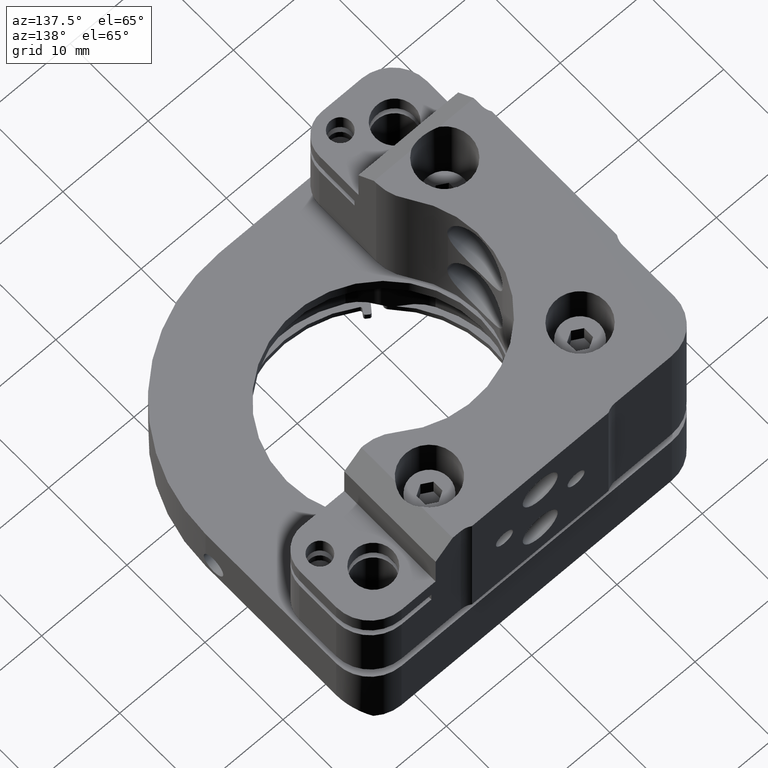
[diagram: clean part render]
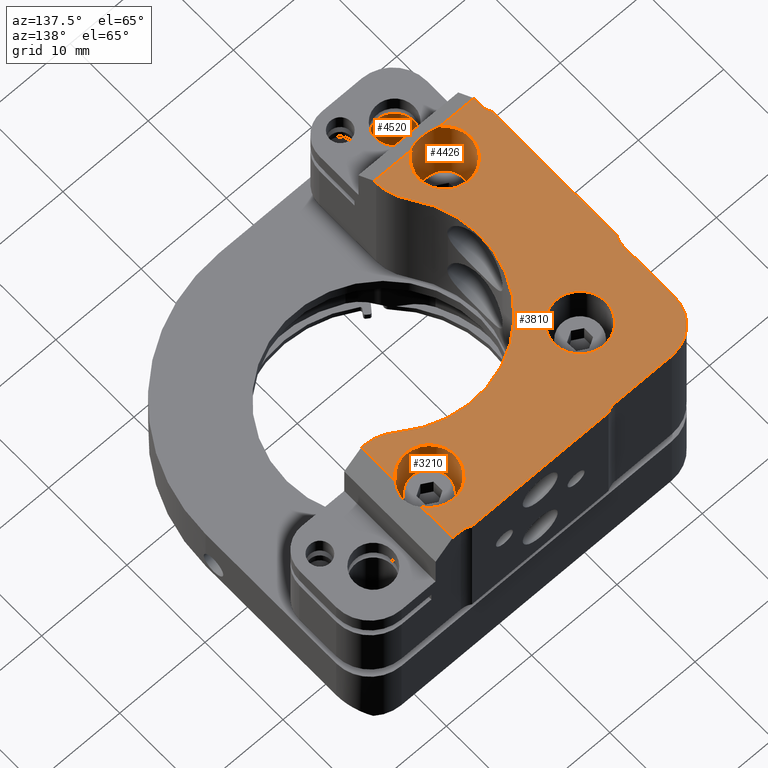
[diagram: same view with one multi-face feature highlighted, each face labeled with its STEP entity id]
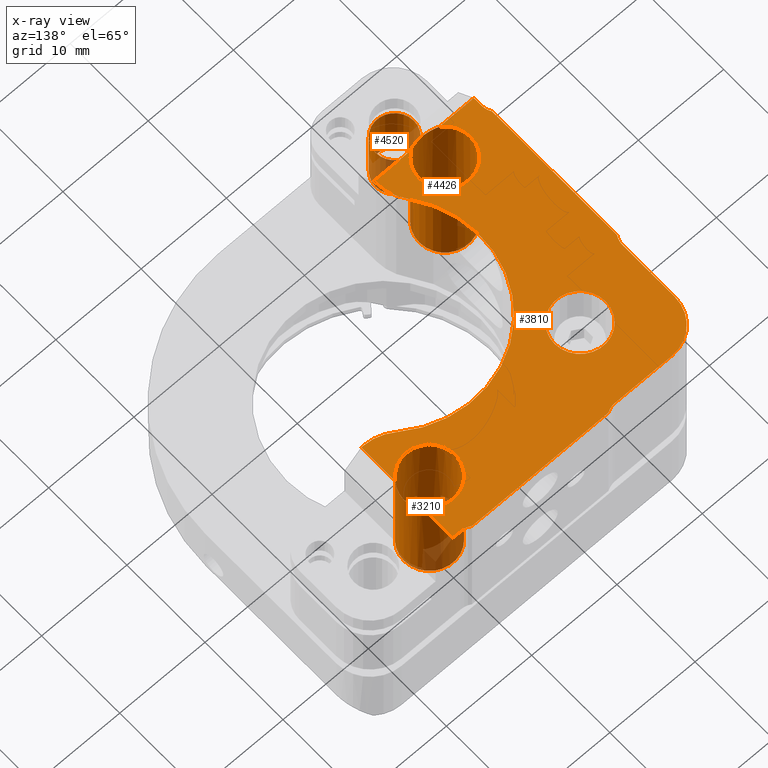
[diagram: x-ray of the same camera — body ghosted, the whole feature saturated]
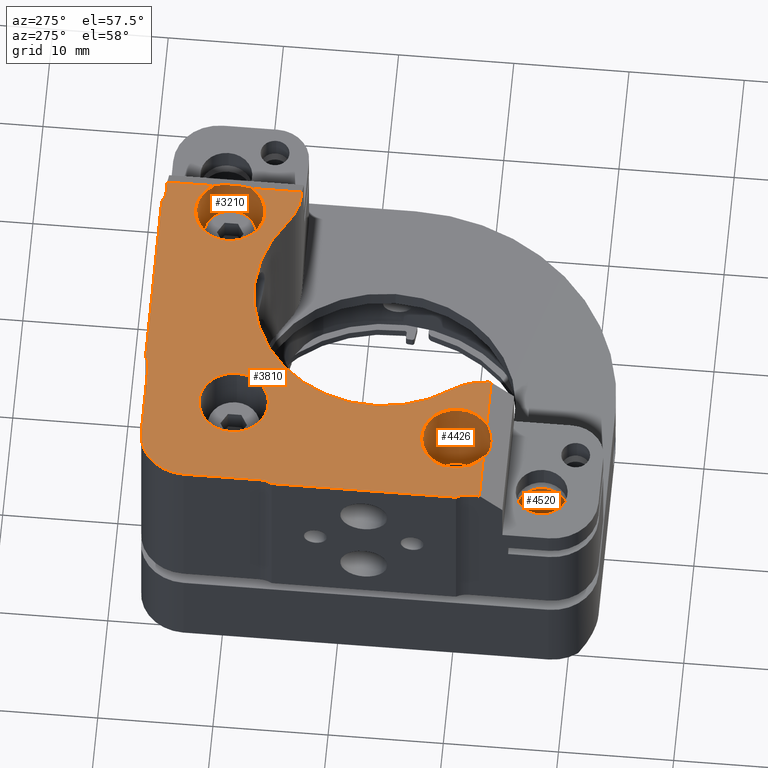
[diagram: same view with one multi-face feature highlighted, each face labeled with its STEP entity id]
A machine part, auxiliary view. The highlighted faces form ONE feature: a stepped (counterbored) hole: 3 coaxial cylindrical walls of radii 2.25 -> 3 -> 3 mm joined by 1 annular planar shoulder face(s). The faces share edges in the B-rep.
The next image is the same camera in x-ray: the body ghosted and the whole hole feature saturated, so the bore chain is visible through the body.
A second angle (auxiliary view) of the same feature is appended — it is thin or edge-on in the first view.
Their STEP definitions:
[1] entity #4426 (Cylinder):
#134 = DIRECTION ( 'NONE',  ( -0.000000000000000000, -0.000000000000000000, -1.000000000000000000 ) ) ;
#200 = AXIS2_PLACEMENT_3D ( 'NONE', #6591, #1652, #4134 ) ;
#840 = FACE_OUTER_BOUND ( 'NONE', #6400, .T. ) ;
#841 = EDGE_LOOP ( 'NONE', ( #7055 ) ) ;
#1652 = DIRECTION ( 'NONE',  ( 0.000000000000000000, 0.000000000000000000, 1.000000000000000000 ) ) ;
#2278 = CIRCLE ( 'NONE', #200, 2.999999999999999112 ) ;
#2597 = VERTEX_POINT ( 'NONE', #4562 ) ;
#2657 = DIRECTION ( 'NONE',  ( 1.000000000000000000, 0.000000000000000000, 0.000000000000000000 ) ) ;
#2949 = CARTESIAN_POINT ( 'NONE',  ( -17.93554518709433054, -13.20580469748687946, 52.06256395507176649 ) ) ;
#3170 = EDGE_CURVE ( 'NONE', #2597, #2597, #2278, .T. ) ;
#3223 =( BOUNDED_CURVE ( )  B_SPLINE_CURVE ( 3, ( #7374, #2949, #4267, #6804 ),
 .UNSPECIFIED., .F., .F. ) 
 B_SPLINE_CURVE_WITH_KNOTS ( ( 4, 4 ),
 ( 2.555907074614559793, 3.727278232565029548 ),
 .UNSPECIFIED. ) 
 CURVE ( )  GEOMETRIC_REPRESENTATION_ITEM ( )  RATIONAL_B_SPLINE_CURVE ( ( 1.000000000000000000, 0.8888888757999821033, 0.8888888757999821033, 1.000000000000000000 ) ) 
 REPRESENTATION_ITEM ( '' )  );
#3283 = DIRECTION ( 'NONE',  ( 1.000000000000000000, 0.000000000000000000, 0.000000000000000000 ) ) ;
#3724 = AXIS2_PLACEMENT_3D ( 'NONE', #5738, #134, #2657 ) ;
#4134 = DIRECTION ( 'NONE',  ( 1.000000000000000000, 0.000000000000000000, 0.000000000000000000 ) ) ;
#4231 = CARTESIAN_POINT ( 'NONE',  ( -15.65536551247457453, -12.51830461373832648, 52.75006403882015604 ) ) ;
#4267 = CARTESIAN_POINT ( 'NONE',  ( -16.69181080580063536, -13.20580469748687946, 52.06256395507176649 ) ) ;
#4426 = ADVANCED_FACE ( 'NONE', ( #840, #7519 ), #6284, .F. ) ;
#4562 = CARTESIAN_POINT ( 'NONE',  ( -14.31367799644748651, -10.01830467263840774, 39.75006403882015604 ) ) ;
#4663 = ORIENTED_EDGE ( 'NONE', *, *, #6455, .T. ) ;
#5181 = DIRECTION ( 'NONE',  ( 0.000000000000000000, 0.000000000000000000, 1.000000000000000000 ) ) ;
#5284 = VERTEX_POINT ( 'NONE', #6995 ) ;
#5738 = CARTESIAN_POINT ( 'NONE',  ( -17.31367799644748828, -10.01830467263840774, 52.75006403882015604 ) ) ;
#5850 = VERTEX_POINT ( 'NONE', #4231 ) ;
#6213 = AXIS2_PLACEMENT_3D ( 'NONE', #6905, #5181, #3283 ) ;
#6284 = CYLINDRICAL_SURFACE ( 'NONE', #6213, 2.999999999999999112 ) ;
#6400 = EDGE_LOOP ( 'NONE', ( #4663, #6865 ) ) ;
#6445 = CIRCLE ( 'NONE', #3724, 2.999999999999999112 ) ;
#6455 = EDGE_CURVE ( 'NONE', #5284, #5850, #3223, .T. ) ;
#6589 = EDGE_CURVE ( 'NONE', #5284, #5850, #6445, .T. ) ;
#6591 = CARTESIAN_POINT ( 'NONE',  ( -17.31367799644748828, -10.01830467263840774, 39.75006403882015604 ) ) ;
#6804 = CARTESIAN_POINT ( 'NONE',  ( -15.65536551247457453, -12.51830461373832648, 52.75006403882015604 ) ) ;
#6865 = ORIENTED_EDGE ( 'NONE', *, *, #6589, .F. ) ;
#6905 = CARTESIAN_POINT ( 'NONE',  ( -17.31367799644748828, -10.01830467263840774, 39.75006403882015604 ) ) ;
#6995 = CARTESIAN_POINT ( 'NONE',  ( -18.97199048042039138, -12.51830461373832648, 52.75006403882015604 ) ) ;
#7055 = ORIENTED_EDGE ( 'NONE', *, *, #3170, .F. ) ;
#7374 = CARTESIAN_POINT ( 'NONE',  ( -18.97199048042039138, -12.51830461373832648, 52.75006403882015604 ) ) ;
#7519 = FACE_OUTER_BOUND ( 'NONE', #841, .T. ) ;
[2] entity #3210 (Cylinder):
#417 = CARTESIAN_POINT ( 'NONE',  ( 4.186322003552734650, 11.48169532736162246, 39.75006403882015604 ) ) ;
#503 = CARTESIAN_POINT ( 'NONE',  ( 6.686321944653159655, 13.14000781133376883, 52.75006403882017025 ) ) ;
#879 = CARTESIAN_POINT ( 'NONE',  ( 7.186322003552734650, 11.48169532736162246, 39.75006403882015604 ) ) ;
#1116 = CARTESIAN_POINT ( 'NONE',  ( 6.686321944653215610, 9.823382843389557806, 52.75006403882011341 ) ) ;
#1155 = ORIENTED_EDGE ( 'NONE', *, *, #3578, .F. ) ;
#2541 = CARTESIAN_POINT ( 'NONE',  ( 6.686321944653215610, 9.823382843389557806, 52.75006403882011341 ) ) ;
#2770 = VERTEX_POINT ( 'NONE', #2541 ) ;
#2784 = VERTEX_POINT ( 'NONE', #879 ) ;
#2898 = FACE_OUTER_BOUND ( 'NONE', #7850, .T. ) ;
#2924 = AXIS2_PLACEMENT_3D ( 'NONE', #417, #7897, #5895 ) ;
#3210 = ADVANCED_FACE ( 'NONE', ( #2898, #7246 ), #7855, .F. ) ;
#3307 = AXIS2_PLACEMENT_3D ( 'NONE', #6344, #6416, #5158 ) ;
#3353 = EDGE_CURVE ( 'NONE', #2770, #6908, #6266, .T. ) ;
#3512 = EDGE_CURVE ( 'NONE', #2770, #6908, #4750, .T. ) ;
#3578 = EDGE_CURVE ( 'NONE', #2784, #2784, #7499, .T. ) ;
#3607 = CARTESIAN_POINT ( 'NONE',  ( 7.373822028400991435, 10.85982813671521008, 52.06256395507249124 ) ) ;
#3809 = DIRECTION ( 'NONE',  ( -0.000000000000000000, -0.000000000000000000, -1.000000000000000000 ) ) ;
#4551 = CARTESIAN_POINT ( 'NONE',  ( 4.186322003552734650, 11.48169532736162246, 52.75006403882015604 ) ) ;
#4750 = CIRCLE ( 'NONE', #5017, 3.000000000000000000 ) ;
#5017 = AXIS2_PLACEMENT_3D ( 'NONE', #4551, #3809, #5124 ) ;
#5124 = DIRECTION ( 'NONE',  ( 1.000000000000000000, 0.000000000000000000, 0.000000000000000000 ) ) ;
#5158 = DIRECTION ( 'NONE',  ( 1.000000000000000000, 0.000000000000000000, 0.000000000000000000 ) ) ;
#5895 = DIRECTION ( 'NONE',  ( 1.000000000000000000, 0.000000000000000000, 0.000000000000000000 ) ) ;
#6266 =( BOUNDED_CURVE ( )  B_SPLINE_CURVE ( 3, ( #1116, #3607, #6888, #503 ),
 .UNSPECIFIED., .F., .F. ) 
 B_SPLINE_CURVE_WITH_KNOTS ( ( 4, 4 ),
 ( 2.555907074614895969, 3.727278232564723570 ),
 .UNSPECIFIED. ) 
 CURVE ( )  GEOMETRIC_REPRESENTATION_ITEM ( )  RATIONAL_B_SPLINE_CURVE ( ( 1.000000000000000000, 0.8888888758001005641, 0.8888888758001005641, 1.000000000000000000 ) ) 
 REPRESENTATION_ITEM ( '' )  );
#6344 = CARTESIAN_POINT ( 'NONE',  ( 4.186322003552734650, 11.48169532736162246, 39.75006403882015604 ) ) ;
#6416 = DIRECTION ( 'NONE',  ( 0.000000000000000000, 0.000000000000000000, 1.000000000000000000 ) ) ;
#6888 = CARTESIAN_POINT ( 'NONE',  ( 7.373822028400970119, 12.10356251800813787, 52.06256395507249835 ) ) ;
#6908 = VERTEX_POINT ( 'NONE', #7342 ) ;
#6965 = ORIENTED_EDGE ( 'NONE', *, *, #3353, .T. ) ;
#6969 = ORIENTED_EDGE ( 'NONE', *, *, #3512, .F. ) ;
#7246 = FACE_OUTER_BOUND ( 'NONE', #8022, .T. ) ;
#7342 = CARTESIAN_POINT ( 'NONE',  ( 6.686321944653159655, 13.14000781133376883, 52.75006403882017025 ) ) ;
#7499 = CIRCLE ( 'NONE', #3307, 3.000000000000000000 ) ;
#7850 = EDGE_LOOP ( 'NONE', ( #6965, #6969 ) ) ;
#7855 = CYLINDRICAL_SURFACE ( 'NONE', #2924, 3.000000000000000000 ) ;
#7897 = DIRECTION ( 'NONE',  ( 0.000000000000000000, 0.000000000000000000, 1.000000000000000000 ) ) ;
#8022 = EDGE_LOOP ( 'NONE', ( #1155 ) ) ;
[3] entity #4520 (Cylinder):
#108 = CARTESIAN_POINT ( 'NONE',  ( -18.31367799644748828, -17.51830467263837576, 43.75006403882016315 ) ) ;
#819 = EDGE_LOOP ( 'NONE', ( #2329 ) ) ;
#1130 = CYLINDRICAL_SURFACE ( 'NONE', #4116, 2.250000000000001776 ) ;
#1702 = DIRECTION ( 'NONE',  ( 0.000000000000000000, 0.000000000000000000, 1.000000000000000000 ) ) ;
#1822 = EDGE_LOOP ( 'NONE', ( #4316 ) ) ;
#2329 = ORIENTED_EDGE ( 'NONE', *, *, #7338, .F. ) ;
#2531 = VERTEX_POINT ( 'NONE', #4954 ) ;
#2593 = DIRECTION ( 'NONE',  ( -0.000000000000000000, -0.000000000000000000, -1.000000000000000000 ) ) ;
#2886 = DIRECTION ( 'NONE',  ( 0.000000000000000000, 0.000000000000000000, 1.000000000000000000 ) ) ;
#2952 = AXIS2_PLACEMENT_3D ( 'NONE', #6786, #2886, #3680 ) ;
#3081 = AXIS2_PLACEMENT_3D ( 'NONE', #108, #2593, #5004 ) ;
#3641 = VERTEX_POINT ( 'NONE', #5330 ) ;
#3680 = DIRECTION ( 'NONE',  ( 1.000000000000000000, 0.000000000000000000, 0.000000000000000000 ) ) ;
#3998 = CIRCLE ( 'NONE', #2952, 2.250000000000001776 ) ;
#4116 = AXIS2_PLACEMENT_3D ( 'NONE', #6196, #1702, #4846 ) ;
#4316 = ORIENTED_EDGE ( 'NONE', *, *, #4642, .F. ) ;
#4520 = ADVANCED_FACE ( 'NONE', ( #4886, #6850 ), #1130, .F. ) ;
#4642 = EDGE_CURVE ( 'NONE', #3641, #3641, #6079, .T. ) ;
#4846 = DIRECTION ( 'NONE',  ( 1.000000000000000000, 0.000000000000000000, 0.000000000000000000 ) ) ;
#4886 = FACE_OUTER_BOUND ( 'NONE', #1822, .T. ) ;
#4954 = CARTESIAN_POINT ( 'NONE',  ( -16.06367799644748473, -17.51830467263837576, 36.75006403882015604 ) ) ;
#5004 = DIRECTION ( 'NONE',  ( 1.000000000000000000, 0.000000000000000000, 0.000000000000000000 ) ) ;
#5330 = CARTESIAN_POINT ( 'NONE',  ( -16.06367799644748473, -17.51830467263837576, 43.75006403882016315 ) ) ;
#6079 = CIRCLE ( 'NONE', #3081, 2.250000000000001776 ) ;
#6196 = CARTESIAN_POINT ( 'NONE',  ( -18.31367799644748828, -17.51830467263837576, 36.75006403882015604 ) ) ;
#6786 = CARTESIAN_POINT ( 'NONE',  ( -18.31367799644748828, -17.51830467263837576, 36.75006403882015604 ) ) ;
#6850 = FACE_OUTER_BOUND ( 'NONE', #819, .T. ) ;
#7338 = EDGE_CURVE ( 'NONE', #2531, #2531, #3998, .T. ) ;
[4] entity #3810 (Plane):
#8 = DIRECTION ( 'NONE',  ( 1.000000000000000000, 3.483324739761428141E-13, 0.000000000000000000 ) ) ;
#35 = CARTESIAN_POINT ( 'NONE',  ( -19.01367805534578892, 13.18169538626012560, 52.75006403882015604 ) ) ;
#48 = AXIS2_PLACEMENT_3D ( 'NONE', #3763, #3634, #6253 ) ;
#51 = EDGE_CURVE ( 'NONE', #4403, #5511, #506, .T. ) ;
#52 = LINE ( 'NONE', #3155, #189 ) ;
#134 = DIRECTION ( 'NONE',  ( -0.000000000000000000, -0.000000000000000000, -1.000000000000000000 ) ) ;
#186 = VERTEX_POINT ( 'NONE', #4544 ) ;
#189 = VECTOR ( 'NONE', #3194, 1000.000000000000000 ) ;
#203 = LINE ( 'NONE', #7686, #7697 ) ;
#240 = CARTESIAN_POINT ( 'NONE',  ( -23.01367805534600919, 6.535260761545188757, 52.75006403882015604 ) ) ;
#326 = AXIS2_PLACEMENT_3D ( 'NONE', #6916, #3802, #493 ) ;
#415 = EDGE_CURVE ( 'NONE', #5065, #3134, #3310, .T. ) ;
#493 = DIRECTION ( 'NONE',  ( 1.000000000000000000, -1.734723475976807094E-15, 0.000000000000000000 ) ) ;
#504 = DIRECTION ( 'NONE',  ( 1.000000000000000000, 0.000000000000000000, -0.000000000000000000 ) ) ;
#506 = CIRCLE ( 'NONE', #3859, 5.000000000000000888 ) ;
#510 = CARTESIAN_POINT ( 'NONE',  ( -23.31367805534660675, -10.51830461373879899, 52.75006403882015604 ) ) ;
#621 = VECTOR ( 'NONE', #7689, 1000.000000000000000 ) ;
#656 = ORIENTED_EDGE ( 'NONE', *, *, #2089, .T. ) ;
#686 = VERTEX_POINT ( 'NONE', #2583 ) ;
#701 = CARTESIAN_POINT ( 'NONE',  ( -19.01367805534630406, 17.18169538626010251, 52.75006403882015604 ) ) ;
#747 = DIRECTION ( 'NONE',  ( -0.000000000000000000, -0.000000000000000000, -1.000000000000000000 ) ) ;
#899 = LINE ( 'NONE', #1678, #4565 ) ;
#922 = DIRECTION ( 'NONE',  ( 1.000000000000000000, 0.000000000000000000, -0.000000000000000000 ) ) ;
#944 = DIRECTION ( 'NONE',  ( 1.387778780781449935E-14, 1.000000000000000000, -0.000000000000000000 ) ) ;
#1026 = EDGE_LOOP ( 'NONE', ( #5889 ) ) ;
#1037 = CARTESIAN_POINT ( 'NONE',  ( -23.01367805534638222, -11.57186998902402841, 52.75006403882015604 ) ) ;
#1102 = LINE ( 'NONE', #3590, #2305 ) ;
#1222 = CARTESIAN_POINT ( 'NONE',  ( -25.01367805534648170, 6.535260761545221619, 52.75006403882015604 ) ) ;
#1439 = ORIENTED_EDGE ( 'NONE', *, *, #7337, .F. ) ;
#1462 = CARTESIAN_POINT ( 'NONE',  ( -11.31367805534638649, -19.51830461373927861, 52.75006403882015604 ) ) ;
#1479 = AXIS2_PLACEMENT_3D ( 'NONE', #35, #6945, #5721 ) ;
#1482 = EDGE_CURVE ( 'NONE', #7163, #1677, #6102, .T. ) ;
#1483 = DIRECTION ( 'NONE',  ( -1.000000000000000000, -0.000000000000000000, -0.000000000000000000 ) ) ;
#1520 = VERTEX_POINT ( 'NONE', #4262 ) ;
#1562 = CARTESIAN_POINT ( 'NONE',  ( -23.01367805534648170, -12.51830461373832826, 52.75006403882016315 ) ) ;
#1622 = ORIENTED_EDGE ( 'NONE', *, *, #5355, .T. ) ;
#1676 = ORIENTED_EDGE ( 'NONE', *, *, #3107, .T. ) ;
#1677 = VERTEX_POINT ( 'NONE', #5191 ) ;
#1678 = CARTESIAN_POINT ( 'NONE',  ( 6.686321944653261795, -2.518304613739596132, 52.75006403882006367 ) ) ;
#1767 = CIRCLE ( 'NONE', #326, 2.000000000000000000 ) ;
#1806 = PLANE ( 'NONE',  #6192 ) ;
#1921 = CIRCLE ( 'NONE', #6479, 3.000000000000000888 ) ;
#1946 = EDGE_CURVE ( 'NONE', #4078, #686, #7511, .T. ) ;
#2006 = DIRECTION ( 'NONE',  ( -0.000000000000000000, -0.000000000000000000, -1.000000000000000000 ) ) ;
#2069 = ORIENTED_EDGE ( 'NONE', *, *, #6589, .T. ) ;
#2078 = DIRECTION ( 'NONE',  ( 1.000000000000000000, 0.000000000000000000, -0.000000000000000000 ) ) ;
#2089 = EDGE_CURVE ( 'NONE', #6747, #5284, #5217, .T. ) ;
#2123 = EDGE_CURVE ( 'NONE', #4238, #1520, #7671, .T. ) ;
#2161 = CARTESIAN_POINT ( 'NONE',  ( 12.68632194465291363, 17.18169538626122517, 52.75006403882015604 ) ) ;
#2255 = CARTESIAN_POINT ( 'NONE',  ( 5.739887319938134169, 17.18169538626110082, 52.75006403882015604 ) ) ;
#2277 = VECTOR ( 'NONE', #922, 1000.000000000000000 ) ;
#2305 = VECTOR ( 'NONE', #6623, 1000.000000000000000 ) ;
#2391 = ORIENTED_EDGE ( 'NONE', *, *, #3157, .F. ) ;
#2405 = FACE_BOUND ( 'NONE', #1026, .T. ) ;
#2541 = CARTESIAN_POINT ( 'NONE',  ( 6.686321944653215610, 9.823382843389557806, 52.75006403882011341 ) ) ;
#2583 = CARTESIAN_POINT ( 'NONE',  ( -23.31367805534638293, 5.481695386260120983, 52.75006403882015604 ) ) ;
#2654 = VECTOR ( 'NONE', #4080, 1000.000000000000000 ) ;
#2657 = DIRECTION ( 'NONE',  ( 1.000000000000000000, 0.000000000000000000, 0.000000000000000000 ) ) ;
#2674 = VECTOR ( 'NONE', #3753, 1000.000000000000000 ) ;
#2770 = VERTEX_POINT ( 'NONE', #2541 ) ;
#2840 = ORIENTED_EDGE ( 'NONE', *, *, #415, .F. ) ;
#2920 = AXIS2_PLACEMENT_3D ( 'NONE', #1222, #4326, #6248 ) ;
#2945 = DIRECTION ( 'NONE',  ( 9.789361583617419394E-14, 1.000000000000000000, -0.000000000000000000 ) ) ;
#3019 = DIRECTION ( 'NONE',  ( 0.000000000000000000, 0.000000000000000000, 1.000000000000000000 ) ) ;
#3045 = CARTESIAN_POINT ( 'NONE',  ( -12.36724343063088583, 17.18169538626032633, 52.75006403882015604 ) ) ;
#3107 = EDGE_CURVE ( 'NONE', #7163, #6577, #1767, .T. ) ;
#3134 = VERTEX_POINT ( 'NONE', #701 ) ;
#3152 = CARTESIAN_POINT ( 'NONE',  ( -11.31367805534607740, 17.48169538626072494, 52.75006403882015604 ) ) ;
#3155 = CARTESIAN_POINT ( 'NONE',  ( 6.686321944653150773, -2.518304613739596132, 52.75006403882017736 ) ) ;
#3157 = EDGE_CURVE ( 'NONE', #6747, #186, #5934, .T. ) ;
#3162 = ORIENTED_EDGE ( 'NONE', *, *, #6613, .T. ) ;
#3194 = DIRECTION ( 'NONE',  ( 0.000000000000000000, 1.000000000000000000, 0.000000000000000000 ) ) ;
#3231 = CARTESIAN_POINT ( 'NONE',  ( -15.31367799644748651, 9.481695327361622461, 52.75006403882015604 ) ) ;
#3310 = CIRCLE ( 'NONE', #1479, 4.000000000000000000 ) ;
#3512 = EDGE_CURVE ( 'NONE', #2770, #6908, #4750, .T. ) ;
#3518 = ORIENTED_EDGE ( 'NONE', *, *, #3649, .T. ) ;
#3590 = CARTESIAN_POINT ( 'NONE',  ( -23.01367805534578537, 13.18169538626032278, 52.75006403882015604 ) ) ;
#3634 = DIRECTION ( 'NONE',  ( -0.000000000000000000, -0.000000000000000000, -1.000000000000000000 ) ) ;
#3649 = EDGE_CURVE ( 'NONE', #6369, #6353, #4667, .T. ) ;
#3669 = ORIENTED_EDGE ( 'NONE', *, *, #8079, .F. ) ;
#3672 = EDGE_CURVE ( 'NONE', #1520, #4617, #5396, .T. ) ;
#3678 = CARTESIAN_POINT ( 'NONE',  ( -11.31367805534616444, -12.26018831469173875, 52.75006403882015604 ) ) ;
#3724 = AXIS2_PLACEMENT_3D ( 'NONE', #5738, #134, #2657 ) ;
#3753 = DIRECTION ( 'NONE',  ( 1.000000000000000000, 3.340807778343670283E-14, -0.000000000000000000 ) ) ;
#3763 = CARTESIAN_POINT ( 'NONE',  ( -3.313678055346378937, -2.518304613739263065, 52.75006403882015604 ) ) ;
#3802 = DIRECTION ( 'NONE',  ( -0.000000000000000000, -0.000000000000000000, -1.000000000000000000 ) ) ;
#3809 = DIRECTION ( 'NONE',  ( -0.000000000000000000, -0.000000000000000000, -1.000000000000000000 ) ) ;
#3810 = ADVANCED_FACE ( 'NONE', ( #2405, #7484 ), #1806, .T. ) ;
#3859 = AXIS2_PLACEMENT_3D ( 'NONE', #4430, #4916, #8 ) ;
#3932 = ORIENTED_EDGE ( 'NONE', *, *, #5216, .T. ) ;
#4045 = VECTOR ( 'NONE', #504, 1000.000000000000000 ) ;
#4078 = VERTEX_POINT ( 'NONE', #240 ) ;
#4080 = DIRECTION ( 'NONE',  ( -1.000000000000000000, -0.000000000000000000, 0.000000000000000000 ) ) ;
#4231 = CARTESIAN_POINT ( 'NONE',  ( -15.65536551247457453, -12.51830461373832648, 52.75006403882015604 ) ) ;
#4238 = VERTEX_POINT ( 'NONE', #4797 ) ;
#4262 = CARTESIAN_POINT ( 'NONE',  ( 6.428205645606094087, 5.481695386260617475, 52.75006403882015604 ) ) ;
#4305 = CARTESIAN_POINT ( 'NONE',  ( 4.686321944653625060, 17.48169538626072494, 52.75006403882015604 ) ) ;
#4326 = DIRECTION ( 'NONE',  ( -0.000000000000000000, -0.000000000000000000, -1.000000000000000000 ) ) ;
#4380 = VECTOR ( 'NONE', #1483, 1000.000000000000000 ) ;
#4403 = VERTEX_POINT ( 'NONE', #6977 ) ;
#4429 = CARTESIAN_POINT ( 'NONE',  ( -12.31367799644748473, 9.481695327361622461, 52.75006403882015604 ) ) ;
#4430 = CARTESIAN_POINT ( 'NONE',  ( -16.31367805534638649, -12.26018831469153625, 52.75006403882015604 ) ) ;
#4544 = CARTESIAN_POINT ( 'NONE',  ( -23.01367805534638222, -11.57186998902411190, 52.75006403882015604 ) ) ;
#4551 = CARTESIAN_POINT ( 'NONE',  ( 4.186322003552734650, 11.48169532736162246, 52.75006403882015604 ) ) ;
#4565 = VECTOR ( 'NONE', #6033, 1000.000000000000000 ) ;
#4617 = VERTEX_POINT ( 'NONE', #7551 ) ;
#4620 = DIRECTION ( 'NONE',  ( 1.000000000000000000, 0.000000000000000000, 0.000000000000000000 ) ) ;
#4643 = CARTESIAN_POINT ( 'NONE',  ( 12.68632194465291363, -12.51830461373832826, 52.75006403882015604 ) ) ;
#4667 = LINE ( 'NONE', #2161, #2654 ) ;
#4703 = LINE ( 'NONE', #1462, #621 ) ;
#4710 = ORIENTED_EDGE ( 'NONE', *, *, #7466, .F. ) ;
#4719 = DIRECTION ( 'NONE',  ( 1.000000000000000000, 1.721713049906979426E-12, 0.000000000000000000 ) ) ;
#4750 = CIRCLE ( 'NONE', #5017, 3.000000000000000000 ) ;
#4797 = CARTESIAN_POINT ( 'NONE',  ( 6.686321944653323079, 5.481695386260712510, 52.75006403882012762 ) ) ;
#4802 = CARTESIAN_POINT ( 'NONE',  ( -25.01367805534648170, -11.57186998902377617, 52.75006403882015604 ) ) ;
#4827 = CARTESIAN_POINT ( 'NONE',  ( 12.68632194465291363, 13.18169538626142234, 52.75006403882015604 ) ) ;
#4916 = DIRECTION ( 'NONE',  ( -0.000000000000000000, -0.000000000000000000, -1.000000000000000000 ) ) ;
#4972 = ORIENTED_EDGE ( 'NONE', *, *, #3512, .T. ) ;
#4999 = CARTESIAN_POINT ( 'NONE',  ( 6.686321944653196070, 17.18169538626116122, 52.75006403882018446 ) ) ;
#5008 = ORIENTED_EDGE ( 'NONE', *, *, #5343, .T. ) ;
#5017 = AXIS2_PLACEMENT_3D ( 'NONE', #4551, #3809, #5124 ) ;
#5065 = VERTEX_POINT ( 'NONE', #5510 ) ;
#5124 = DIRECTION ( 'NONE',  ( 1.000000000000000000, 0.000000000000000000, 0.000000000000000000 ) ) ;
#5143 = CIRCLE ( 'NONE', #48, 11.24513151818799983 ) ;
#5180 = CARTESIAN_POINT ( 'NONE',  ( 6.428205645606094087, 5.481695386260712510, 52.75006403882015604 ) ) ;
#5191 = CARTESIAN_POINT ( 'NONE',  ( 4.686321944652941163, 17.48169538626072494, 52.75006403882015604 ) ) ;
#5216 = EDGE_CURVE ( 'NONE', #6353, #1677, #6519, .T. ) ;
#5217 = LINE ( 'NONE', #4643, #2277 ) ;
#5284 = VERTEX_POINT ( 'NONE', #6995 ) ;
#5311 = ORIENTED_EDGE ( 'NONE', *, *, #51, .F. ) ;
#5343 = EDGE_CURVE ( 'NONE', #5850, #6605, #203, .T. ) ;
#5355 = EDGE_CURVE ( 'NONE', #4238, #2770, #899, .T. ) ;
#5396 = CIRCLE ( 'NONE', #6319, 4.999999999999999112 ) ;
#5510 = CARTESIAN_POINT ( 'NONE',  ( -23.01367805534578537, 13.18169538626019488, 52.75006403882015604 ) ) ;
#5511 = VERTEX_POINT ( 'NONE', #3678 ) ;
#5603 = EDGE_CURVE ( 'NONE', #4403, #4617, #5143, .T. ) ;
#5636 = ORIENTED_EDGE ( 'NONE', *, *, #7229, .F. ) ;
#5721 = DIRECTION ( 'NONE',  ( 1.000000000000000000, -8.673617379884035472E-16, 0.000000000000000000 ) ) ;
#5738 = CARTESIAN_POINT ( 'NONE',  ( -17.31367799644748828, -10.01830467263840774, 52.75006403882015604 ) ) ;
#5741 = ORIENTED_EDGE ( 'NONE', *, *, #3672, .F. ) ;
#5843 = CARTESIAN_POINT ( 'NONE',  ( 5.739887319938134169, 19.18169538626082016, 52.75006403882015604 ) ) ;
#5850 = VERTEX_POINT ( 'NONE', #4231 ) ;
#5871 = EDGE_LOOP ( 'NONE', ( #1622, #4972, #3162, #3518, #3932, #8007, #1676, #3669, #2840, #4710, #7580, #1439, #7848, #2391, #656, #2069, #5008, #5636, #5311, #7469, #5741, #7404 ) ) ;
#5889 = ORIENTED_EDGE ( 'NONE', *, *, #7134, .T. ) ;
#5899 = DIRECTION ( 'NONE',  ( -0.000000000000000000, -0.000000000000000000, -1.000000000000000000 ) ) ;
#5922 = CIRCLE ( 'NONE', #6579, 2.000000000000001776 ) ;
#5934 = LINE ( 'NONE', #1037, #6332 ) ;
#6033 = DIRECTION ( 'NONE',  ( 0.000000000000000000, 1.000000000000000000, 0.000000000000000000 ) ) ;
#6102 = LINE ( 'NONE', #4305, #4045 ) ;
#6192 = AXIS2_PLACEMENT_3D ( 'NONE', #4827, #3019, #7971 ) ;
#6224 = VERTEX_POINT ( 'NONE', #4429 ) ;
#6242 = LINE ( 'NONE', #3045, #2674 ) ;
#6247 = EDGE_CURVE ( 'NONE', #6389, #186, #5922, .T. ) ;
#6248 = DIRECTION ( 'NONE',  ( 1.000000000000000000, -1.691355389077326964E-14, 0.000000000000000000 ) ) ;
#6253 = DIRECTION ( 'NONE',  ( 1.000000000000000000, 0.000000000000000000, 0.000000000000000000 ) ) ;
#6264 = AXIS2_PLACEMENT_3D ( 'NONE', #5843, #2006, #7612 ) ;
#6319 = AXIS2_PLACEMENT_3D ( 'NONE', #7726, #7808, #4620 ) ;
#6332 = VECTOR ( 'NONE', #2945, 1000.000000000000000 ) ;
#6350 = CARTESIAN_POINT ( 'NONE',  ( -12.36724343063085207, 17.18169538626032633, 52.75006403882015604 ) ) ;
#6352 = VECTOR ( 'NONE', #944, 1000.000000000000000 ) ;
#6353 = VERTEX_POINT ( 'NONE', #2255 ) ;
#6369 = VERTEX_POINT ( 'NONE', #4999 ) ;
#6389 = VERTEX_POINT ( 'NONE', #510 ) ;
#6445 = CIRCLE ( 'NONE', #3724, 2.999999999999999112 ) ;
#6479 = AXIS2_PLACEMENT_3D ( 'NONE', #3231, #747, #6923 ) ;
#6519 = CIRCLE ( 'NONE', #6264, 1.999999999999920286 ) ;
#6539 = CARTESIAN_POINT ( 'NONE',  ( -23.31367805534638293, 5.481695386260712510, 52.75006403882015604 ) ) ;
#6577 = VERTEX_POINT ( 'NONE', #6350 ) ;
#6579 = AXIS2_PLACEMENT_3D ( 'NONE', #4802, #5899, #4719 ) ;
#6589 = EDGE_CURVE ( 'NONE', #5284, #5850, #6445, .T. ) ;
#6605 = VERTEX_POINT ( 'NONE', #7004 ) ;
#6613 = EDGE_CURVE ( 'NONE', #6908, #6369, #52, .T. ) ;
#6623 = DIRECTION ( 'NONE',  ( 3.340807778344009809E-14, 1.000000000000000000, -0.000000000000000000 ) ) ;
#6747 = VERTEX_POINT ( 'NONE', #1562 ) ;
#6908 = VERTEX_POINT ( 'NONE', #7342 ) ;
#6916 = CARTESIAN_POINT ( 'NONE',  ( -12.36724343063088583, 19.18169538626082016, 52.75006403882015604 ) ) ;
#6923 = DIRECTION ( 'NONE',  ( 1.000000000000000000, 0.000000000000000000, 0.000000000000000000 ) ) ;
#6945 = DIRECTION ( 'NONE',  ( -0.000000000000000000, -0.000000000000000000, -1.000000000000000000 ) ) ;
#6977 = CARTESIAN_POINT ( 'NONE',  ( -12.31247930067644880, -9.261787319892579973, 52.75006403882015604 ) ) ;
#6995 = CARTESIAN_POINT ( 'NONE',  ( -18.97199048042039138, -12.51830461373832648, 52.75006403882015604 ) ) ;
#7004 = CARTESIAN_POINT ( 'NONE',  ( -11.31367805534620530, -12.51830461373832826, 52.75006403882016315 ) ) ;
#7134 = EDGE_CURVE ( 'NONE', #6224, #6224, #1921, .T. ) ;
#7155 = LINE ( 'NONE', #6539, #6352 ) ;
#7163 = VERTEX_POINT ( 'NONE', #3152 ) ;
#7229 = EDGE_CURVE ( 'NONE', #5511, #6605, #4703, .T. ) ;
#7337 = EDGE_CURVE ( 'NONE', #6389, #686, #7155, .T. ) ;
#7342 = CARTESIAN_POINT ( 'NONE',  ( 6.686321944653159655, 13.14000781133376883, 52.75006403882017025 ) ) ;
#7404 = ORIENTED_EDGE ( 'NONE', *, *, #2123, .F. ) ;
#7466 = EDGE_CURVE ( 'NONE', #4078, #5065, #1102, .T. ) ;
#7469 = ORIENTED_EDGE ( 'NONE', *, *, #5603, .T. ) ;
#7484 = FACE_OUTER_BOUND ( 'NONE', #5871, .T. ) ;
#7511 = CIRCLE ( 'NONE', #2920, 2.000000000000071054 ) ;
#7551 = CARTESIAN_POINT ( 'NONE',  ( 3.429804650809838318, 6.480496631595250356, 52.75006403882015604 ) ) ;
#7580 = ORIENTED_EDGE ( 'NONE', *, *, #1946, .T. ) ;
#7612 = DIRECTION ( 'NONE',  ( 1.000000000000000000, 1.734723475976876317E-15, 0.000000000000000000 ) ) ;
#7671 = LINE ( 'NONE', #5180, #4380 ) ;
#7686 = CARTESIAN_POINT ( 'NONE',  ( 12.68632194465291363, -12.51830461373832826, 52.75006403882015604 ) ) ;
#7689 = DIRECTION ( 'NONE',  ( -3.059259397016969707E-14, -1.000000000000000000, -0.000000000000000000 ) ) ;
#7697 = VECTOR ( 'NONE', #2078, 1000.000000000000000 ) ;
#7726 = CARTESIAN_POINT ( 'NONE',  ( 6.428205645606094087, 10.48169538626052244, 52.75006403882015604 ) ) ;
#7808 = DIRECTION ( 'NONE',  ( -0.000000000000000000, -0.000000000000000000, -1.000000000000000000 ) ) ;
#7848 = ORIENTED_EDGE ( 'NONE', *, *, #6247, .T. ) ;
#7971 = DIRECTION ( 'NONE',  ( 1.000000000000000000, 0.000000000000000000, -0.000000000000000000 ) ) ;
#8007 = ORIENTED_EDGE ( 'NONE', *, *, #1482, .F. ) ;
#8079 = EDGE_CURVE ( 'NONE', #3134, #6577, #6242, .T. ) ;